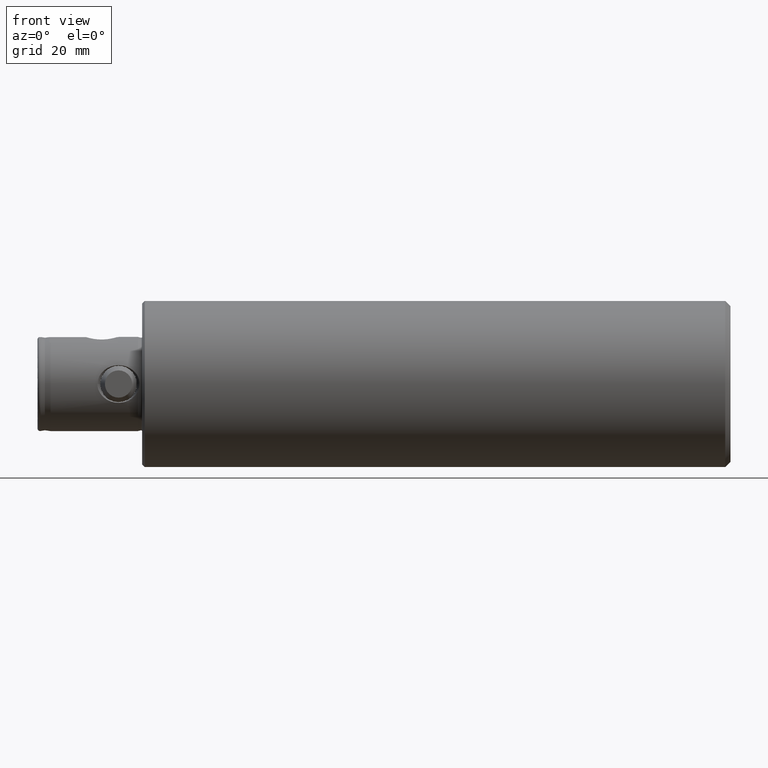
[diagram: clean part render]
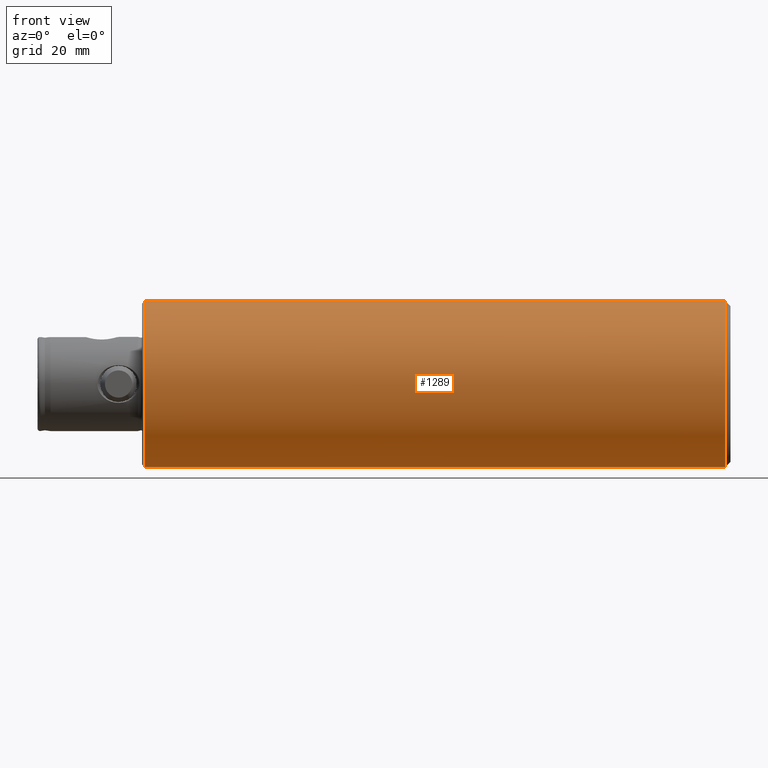
[diagram: same view with one face highlighted and labeled with its STEP entity id]
A machine part, front view. The second image highlights one B-rep face of the part: STEP entity #1289.
In plain terms, the highlighted cylindrical surface (partial cylindrical patch) has radius 31.75 mm, axis along (-1, -0, -0).
Its self-contained STEP definition (entity closure, byte-faithful):
#102 = ORIENTED_EDGE ( 'NONE', *, *, #2127, .T. ) ;
#243 = DIRECTION ( 'NONE',  ( -1.000000000000000000, -0.0000000000000000000, -0.0000000000000000000 ) ) ;
#245 = DIRECTION ( 'NONE',  ( 0.0000000000000000000, 0.0000000000000000000, 1.000000000000000000 ) ) ;
#247 = CARTESIAN_POINT ( 'NONE',  ( 0.0000000000000000000, 0.0000000000000000000, 0.0000000000000000000 ) ) ;
#525 = CARTESIAN_POINT ( 'NONE',  ( 0.0000000000000000000, 0.0000000000000000000, 31.75000000000000000 ) ) ;
#526 = DIRECTION ( 'NONE',  ( -1.000000000000000000, -0.0000000000000000000, -0.0000000000000000000 ) ) ;
#760 = CARTESIAN_POINT ( 'NONE',  ( 0.0000000000000000000, 3.888253587292846500E-015, -31.75000000000000000 ) ) ;
#761 = DIRECTION ( 'NONE',  ( -1.000000000000000000, -0.0000000000000000000, -0.0000000000000000000 ) ) ;
#1225 = CARTESIAN_POINT ( 'NONE',  ( 263.0000000000000000, 0.0000000000000000000, 0.0000000000000000000 ) ) ;
#1226 = DIRECTION ( 'NONE',  ( -1.000000000000000000, -0.0000000000000000000, -0.0000000000000000000 ) ) ;
#1227 = DIRECTION ( 'NONE',  ( 0.0000000000000000000, 0.0000000000000000000, 1.000000000000000000 ) ) ;
#1228 = CARTESIAN_POINT ( 'NONE',  ( 41.00000000000000000, 0.0000000000000000000, 0.0000000000000000000 ) ) ;
#1229 = DIRECTION ( 'NONE',  ( -1.000000000000000000, -0.0000000000000000000, -0.0000000000000000000 ) ) ;
#1230 = DIRECTION ( 'NONE',  ( 0.0000000000000000000, 0.0000000000000000000, 1.000000000000000000 ) ) ;
#1289 = ADVANCED_FACE ( 'NONE', ( #3008 ), #3014, .T. ) ;
#1438 = CARTESIAN_POINT ( 'NONE',  ( 263.0000000000000000, 0.0000000000000000000, 31.75000000000000000 ) ) ;
#1439 = CARTESIAN_POINT ( 'NONE',  ( 263.0000000000000000, 3.888253587292846500E-015, -31.75000000000000000 ) ) ;
#1479 = CARTESIAN_POINT ( 'NONE',  ( 41.00000000000000000, 0.0000000000000000000, 31.75000000000000000 ) ) ;
#1480 = CARTESIAN_POINT ( 'NONE',  ( 41.00000000000000000, 3.888253587292846500E-015, -31.75000000000000000 ) ) ;
#2017 = EDGE_CURVE ( 'NONE', #2578, #2619, #3133, .T. ) ;
#2039 = EDGE_CURVE ( 'NONE', #2579, #2620, #3159, .T. ) ;
#2127 = EDGE_CURVE ( 'NONE', #2579, #2578, #2297, .T. ) ;
#2128 = EDGE_CURVE ( 'NONE', #2620, #2619, #2304, .T. ) ;
#2297 = CIRCLE ( 'NONE', #2904, 31.75000000000000000 ) ;
#2304 = CIRCLE ( 'NONE', #2905, 31.75000000000000000 ) ;
#2433 = ORIENTED_EDGE ( 'NONE', *, *, #2039, .F. ) ;
#2434 = ORIENTED_EDGE ( 'NONE', *, *, #2017, .T. ) ;
#2435 = ORIENTED_EDGE ( 'NONE', *, *, #2128, .F. ) ;
#2578 = VERTEX_POINT ( 'NONE', #1438 ) ;
#2579 = VERTEX_POINT ( 'NONE', #1439 ) ;
#2619 = VERTEX_POINT ( 'NONE', #1479 ) ;
#2620 = VERTEX_POINT ( 'NONE', #1480 ) ;
#2673 = EDGE_LOOP ( 'NONE', ( #2433, #102, #2434, #2435 ) ) ;
#2791 = AXIS2_PLACEMENT_3D ( 'NONE', #247, #243, #245 ) ;
#2904 = AXIS2_PLACEMENT_3D ( 'NONE', #1225, #1226, #1227 ) ;
#2905 = AXIS2_PLACEMENT_3D ( 'NONE', #1228, #1229, #1230 ) ;
#3008 = FACE_OUTER_BOUND ( 'NONE', #2673, .T. ) ;
#3014 = CYLINDRICAL_SURFACE ( 'NONE', #2791, 31.75000000000000000 ) ;
#3133 = LINE ( 'NONE', #525, #3136 ) ;
#3136 = VECTOR ( 'NONE', #526, 1000.000000000000000 ) ;
#3159 = LINE ( 'NONE', #760, #3162 ) ;
#3162 = VECTOR ( 'NONE', #761, 1000.000000000000000 ) ;